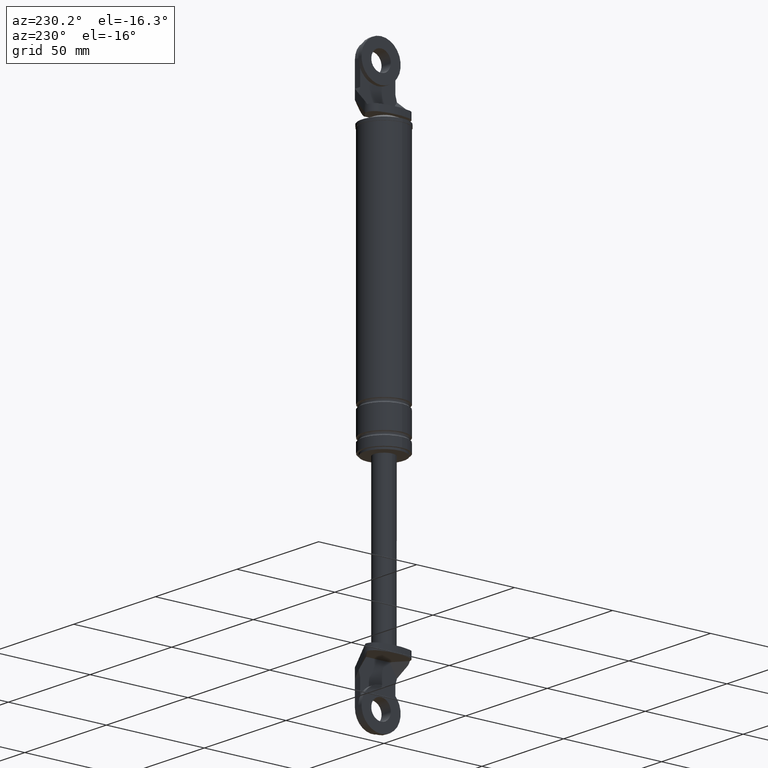
[diagram: clean part render]
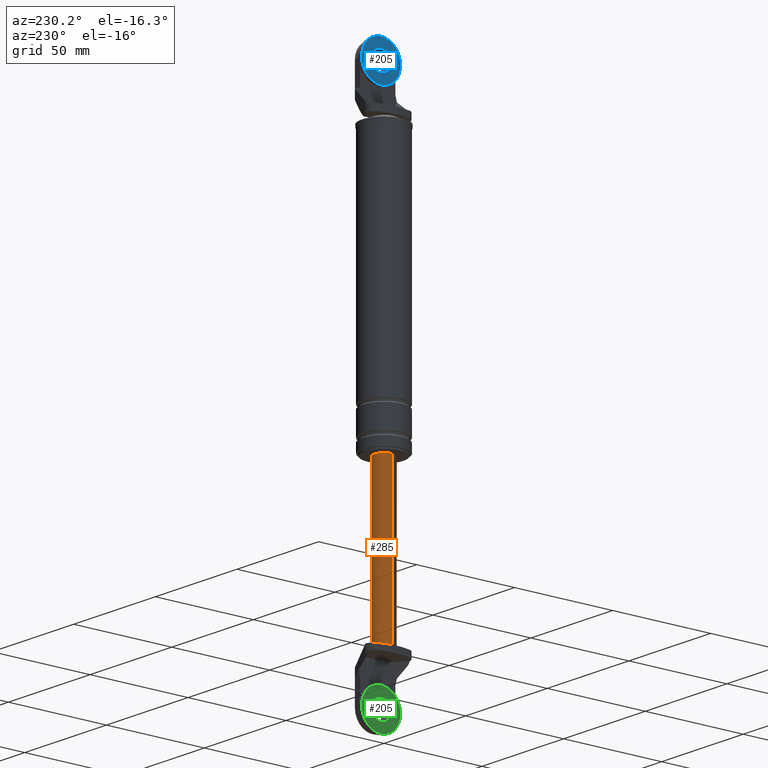
[diagram: same view with three faces highlighted in distinct colors, each labeled with its STEP entity id]
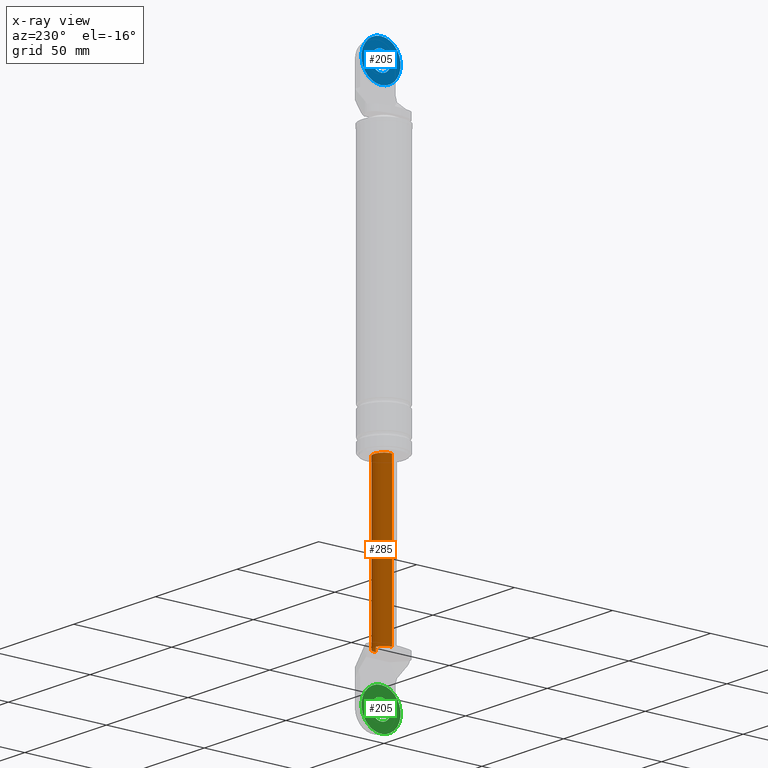
[diagram: x-ray of the same camera — body ghosted, the three highlighted faces saturated]
A machine part, auxiliary view with three faces highlighted in distinct colors.
The next image is the same camera in x-ray (body ghosted, the three faces saturated) — at least one of them is partly hidden behind the body in this view.
Their STEP definitions:

[orange] entity #285 — the highlighted cylindrical surface (edge-blend (fillet) strip) has radius 5 mm, axis along (0, 0, 1).
#285=ADVANCED_FACE('',(#1109),#1108,.T.);
#1108=CYLINDRICAL_SURFACE('',#1773,5.00000000000E+000);
#1109=FACE_OUTER_BOUND('',#1774,.T.);
#1770=CARTESIAN_POINT('',(0.00000000000E+000,3.58204186421E-014,0.00000000000E+000));
#1771=DIRECTION('',(-0.00000000000E+000,-0.00000000000E+000,1.00000000000E+000));
#1772=DIRECTION('',(1.00000000000E+000,0.00000000000E+000,0.00000000000E+000));
#1773=AXIS2_PLACEMENT_3D('',#1770,#1771,#1772);
#1774=EDGE_LOOP('',(#2170,#2171,#2172,#2173,#2174));
#2170=ORIENTED_EDGE('',*,*,#2374,.T.);
#2171=ORIENTED_EDGE('',*,*,#2378,.F.);
#2172=ORIENTED_EDGE('',*,*,#2362,.F.);
#2173=ORIENTED_EDGE('',*,*,#2366,.F.);
#2174=ORIENTED_EDGE('',*,*,#2379,.T.);
#2362=EDGE_CURVE('',#3244,#3594,#3595,.T.);
#2366=EDGE_CURVE('',#3613,#3244,#3620,.T.);
#2374=EDGE_CURVE('',#3665,#3664,#3672,.T.);
#2378=EDGE_CURVE('',#3594,#3664,#3696,.T.);
#2379=EDGE_CURVE('',#3613,#3665,#3702,.T.);
#3244=VERTEX_POINT('',#4240);
#3594=VERTEX_POINT('',#4448);
#3595=CIRCLE('',#4452,5.00000000000E+000);
#3613=VERTEX_POINT('',#4460);
#3620=CIRCLE('',#4468,5.00000000000E+000);
#3664=VERTEX_POINT('',#4492);
#3665=VERTEX_POINT('',#4493);
#3672=CIRCLE('',#4501,5.00000000000E+000);
#3696=(BOUNDED_CURVE() B_SPLINE_CURVE(1,(#4510,#4511),.UNSPECIFIED.,.F.,.F.) B_SPLINE_CURVE_WITH_KNOTS((2,2),(8.33333332085E-002,9.16666666563E-001),.UNSPECIFIED.) CURVE() GEOMETRIC_REPRESENTATION_ITEM() RATIONAL_B_SPLINE_CURVE((1.00000000000E+000,1.00000000000E+000)) REPRESENTATION_ITEM('') );
#3702=(BOUNDED_CURVE() B_SPLINE_CURVE(1,(#4512,#4513),.UNSPECIFIED.,.F.,.F.) B_SPLINE_CURVE_WITH_KNOTS((2,2),(8.33333333333E-002,9.16666666667E-001),.UNSPECIFIED.) CURVE() GEOMETRIC_REPRESENTATION_ITEM() RATIONAL_B_SPLINE_CURVE((7.50000000000E-001,7.50000000000E-001)) REPRESENTATION_ITEM('') );
#4240=CARTESIAN_POINT('',(2.00000000000E+000,4.58257569496E+000,-1.28000015000E+002));
#4448=CARTESIAN_POINT('',(5.00000000000E+000,1.01515834226E-011,-1.28000015000E+002));
#4449=CARTESIAN_POINT('',(0.00000000000E+000,3.58204186421E-014,-1.28000015000E+002));
#4450=DIRECTION('',(0.00000000000E+000,0.00000000000E+000,-1.00000000000E+000));
#4451=DIRECTION('',(4.00000000000E-001,9.16515138991E-001,0.00000000000E+000));
#4452=AXIS2_PLACEMENT_3D('',#4449,#4450,#4451);
#4460=CARTESIAN_POINT('',(-5.00000000000E+000,8.97827335911E-007,-1.28000015000E+002));
#4465=CARTESIAN_POINT('',(0.00000000000E+000,3.58204186421E-014,-1.28000015000E+002));
#4466=DIRECTION('',(0.00000000000E+000,0.00000000000E+000,-1.00000000000E+000));
#4467=DIRECTION('',(1.00000000000E+000,-0.00000000000E+000,-0.00000000000E+000));
#4468=AXIS2_PLACEMENT_3D('',#4465,#4466,#4467);
#4492=CARTESIAN_POINT('',(5.00000000000E+000,3.58231962612E-014,-4.90000150000E+001));
#4493=CARTESIAN_POINT('',(-5.00000000000E+000,3.58204186421E-014,-4.90000150000E+001));
#4498=CARTESIAN_POINT('',(0.00000000000E+000,3.58204186421E-014,-4.90000150000E+001));
#4499=DIRECTION('',(-0.00000000000E+000,0.00000000000E+000,-1.00000000000E+000));
#4500=DIRECTION('',(-1.00000000000E+000,-1.22460635382E-016,0.00000000000E+000));
#4501=AXIS2_PLACEMENT_3D('',#4498,#4499,#4500);
#4510=CARTESIAN_POINT('',(5.00000000000E+000,3.58204186421E-014,-1.28000015012E+002));
#4511=CARTESIAN_POINT('',(5.00000000000E+000,3.58204186421E-014,-4.90000150098E+001));
#4512=CARTESIAN_POINT('',(-5.00000000000E+000,3.55271367880E-014,-1.28000015000E+002));
#4513=CARTESIAN_POINT('',(-5.00000000000E+000,3.55271367880E-014,-4.90000150000E+001));

[blue] entity #205 — the highlighted planar face has unit normal (1, 0, 0).
#205=ADVANCED_FACE('',(#299,#300),#298,.F.);
#298=PLANE('',#1137);
#299=FACE_OUTER_BOUND('',#1138,.T.);
#300=FACE_BOUND('',#1139,.T.);
#1134=CARTESIAN_POINT('',(-6.90000460000E+001,2.07846096908E+001,2.76000000000E+002));
#1135=DIRECTION('',(1.00000000000E+000,0.00000000000E+000,0.00000000000E+000));
#1136=DIRECTION('',(0.00000000000E+000,-1.00000000000E+000,0.00000000000E+000));
#1137=AXIS2_PLACEMENT_3D('',#1134,#1135,#1136);
#1138=EDGE_LOOP('',(#1784,#1785));
#1139=EDGE_LOOP('',(#1786,#1787));
#1784=ORIENTED_EDGE('',*,*,#2184,.T.);
#1785=ORIENTED_EDGE('',*,*,#2185,.T.);
#1786=ORIENTED_EDGE('',*,*,#2186,.F.);
#1787=ORIENTED_EDGE('',*,*,#2187,.F.);
#2184=EDGE_CURVE('',#2408,#2409,#2410,.T.);
#2185=EDGE_CURVE('',#2409,#2408,#2416,.T.);
#2186=EDGE_CURVE('',#2422,#2423,#2424,.T.);
#2187=EDGE_CURVE('',#2423,#2422,#2430,.T.);
#2408=VERTEX_POINT('',#3728);
#2409=VERTEX_POINT('',#3729);
#2410=CIRCLE('',#3733,1.00000000000E+001);
#2416=CIRCLE('',#3737,1.00000000000E+001);
#2422=VERTEX_POINT('',#3738);
#2423=VERTEX_POINT('',#3739);
#2424=CIRCLE('',#3743,5.00000000000E+000);
#2430=CIRCLE('',#3747,5.00000000000E+000);
#3728=CARTESIAN_POINT('',(-6.90000460000E+001,5.68434188608E-014,2.43000000000E+002));
#3729=CARTESIAN_POINT('',(-6.90000460000E+001,5.80276567537E-014,2.63000000000E+002));
#3730=CARTESIAN_POINT('',(-6.90000460000E+001,5.68434188608E-014,2.53000000000E+002));
#3731=DIRECTION('',(-1.00000000000E+000,0.00000000000E+000,-0.00000000000E+000));
#3732=DIRECTION('',(0.00000000000E+000,-1.22460635382E-016,-1.00000000000E+000));
#3733=AXIS2_PLACEMENT_3D('',#3730,#3731,#3732);
#3734=CARTESIAN_POINT('',(-6.90000460000E+001,5.68434188608E-014,2.53000000000E+002));
#3735=DIRECTION('',(-1.00000000000E+000,0.00000000000E+000,-0.00000000000E+000));
#3736=DIRECTION('',(0.00000000000E+000,-1.22460635382E-016,-1.00000000000E+000));
#3737=AXIS2_PLACEMENT_3D('',#3734,#3735,#3736);
#3738=CARTESIAN_POINT('',(-6.90000460000E+001,5.74355378073E-014,2.58000000000E+002));
#3739=CARTESIAN_POINT('',(-6.90000460000E+001,5.68434188608E-014,2.48000000000E+002));
#3740=CARTESIAN_POINT('',(-6.90000460000E+001,5.68434188608E-014,2.53000000000E+002));
#3741=DIRECTION('',(-1.00000000000E+000,0.00000000000E+000,-0.00000000000E+000));
#3742=DIRECTION('',(0.00000000000E+000,-1.22460635382E-016,-1.00000000000E+000));
#3743=AXIS2_PLACEMENT_3D('',#3740,#3741,#3742);
#3744=CARTESIAN_POINT('',(-6.90000460000E+001,5.68434188608E-014,2.53000000000E+002));
#3745=DIRECTION('',(-1.00000000000E+000,0.00000000000E+000,-0.00000000000E+000));
#3746=DIRECTION('',(0.00000000000E+000,-1.22460635382E-016,-1.00000000000E+000));
#3747=AXIS2_PLACEMENT_3D('',#3744,#3745,#3746);

[green] entity #205 — the highlighted planar face has unit normal (1, 0, 0).
#205=ADVANCED_FACE('',(#299,#300),#298,.F.);
#298=PLANE('',#1137);
#299=FACE_OUTER_BOUND('',#1138,.T.);
#300=FACE_BOUND('',#1139,.T.);
#1134=CARTESIAN_POINT('',(-6.90000460000E+001,2.07846096908E+001,2.76000000000E+002));
#1135=DIRECTION('',(1.00000000000E+000,0.00000000000E+000,0.00000000000E+000));
#1136=DIRECTION('',(0.00000000000E+000,-1.00000000000E+000,0.00000000000E+000));
#1137=AXIS2_PLACEMENT_3D('',#1134,#1135,#1136);
#1138=EDGE_LOOP('',(#1784,#1785));
#1139=EDGE_LOOP('',(#1786,#1787));
#1784=ORIENTED_EDGE('',*,*,#2184,.T.);
#1785=ORIENTED_EDGE('',*,*,#2185,.T.);
#1786=ORIENTED_EDGE('',*,*,#2186,.F.);
#1787=ORIENTED_EDGE('',*,*,#2187,.F.);
#2184=EDGE_CURVE('',#2408,#2409,#2410,.T.);
#2185=EDGE_CURVE('',#2409,#2408,#2416,.T.);
#2186=EDGE_CURVE('',#2422,#2423,#2424,.T.);
#2187=EDGE_CURVE('',#2423,#2422,#2430,.T.);
#2408=VERTEX_POINT('',#3728);
#2409=VERTEX_POINT('',#3729);
#2410=CIRCLE('',#3733,1.00000000000E+001);
#2416=CIRCLE('',#3737,1.00000000000E+001);
#2422=VERTEX_POINT('',#3738);
#2423=VERTEX_POINT('',#3739);
#2424=CIRCLE('',#3743,5.00000000000E+000);
#2430=CIRCLE('',#3747,5.00000000000E+000);
#3728=CARTESIAN_POINT('',(-6.90000460000E+001,5.68434188608E-014,2.43000000000E+002));
#3729=CARTESIAN_POINT('',(-6.90000460000E+001,5.80276567537E-014,2.63000000000E+002));
#3730=CARTESIAN_POINT('',(-6.90000460000E+001,5.68434188608E-014,2.53000000000E+002));
#3731=DIRECTION('',(-1.00000000000E+000,0.00000000000E+000,-0.00000000000E+000));
#3732=DIRECTION('',(0.00000000000E+000,-1.22460635382E-016,-1.00000000000E+000));
#3733=AXIS2_PLACEMENT_3D('',#3730,#3731,#3732);
#3734=CARTESIAN_POINT('',(-6.90000460000E+001,5.68434188608E-014,2.53000000000E+002));
#3735=DIRECTION('',(-1.00000000000E+000,0.00000000000E+000,-0.00000000000E+000));
#3736=DIRECTION('',(0.00000000000E+000,-1.22460635382E-016,-1.00000000000E+000));
#3737=AXIS2_PLACEMENT_3D('',#3734,#3735,#3736);
#3738=CARTESIAN_POINT('',(-6.90000460000E+001,5.74355378073E-014,2.58000000000E+002));
#3739=CARTESIAN_POINT('',(-6.90000460000E+001,5.68434188608E-014,2.48000000000E+002));
#3740=CARTESIAN_POINT('',(-6.90000460000E+001,5.68434188608E-014,2.53000000000E+002));
#3741=DIRECTION('',(-1.00000000000E+000,0.00000000000E+000,-0.00000000000E+000));
#3742=DIRECTION('',(0.00000000000E+000,-1.22460635382E-016,-1.00000000000E+000));
#3743=AXIS2_PLACEMENT_3D('',#3740,#3741,#3742);
#3744=CARTESIAN_POINT('',(-6.90000460000E+001,5.68434188608E-014,2.53000000000E+002));
#3745=DIRECTION('',(-1.00000000000E+000,0.00000000000E+000,-0.00000000000E+000));
#3746=DIRECTION('',(0.00000000000E+000,-1.22460635382E-016,-1.00000000000E+000));
#3747=AXIS2_PLACEMENT_3D('',#3744,#3745,#3746);